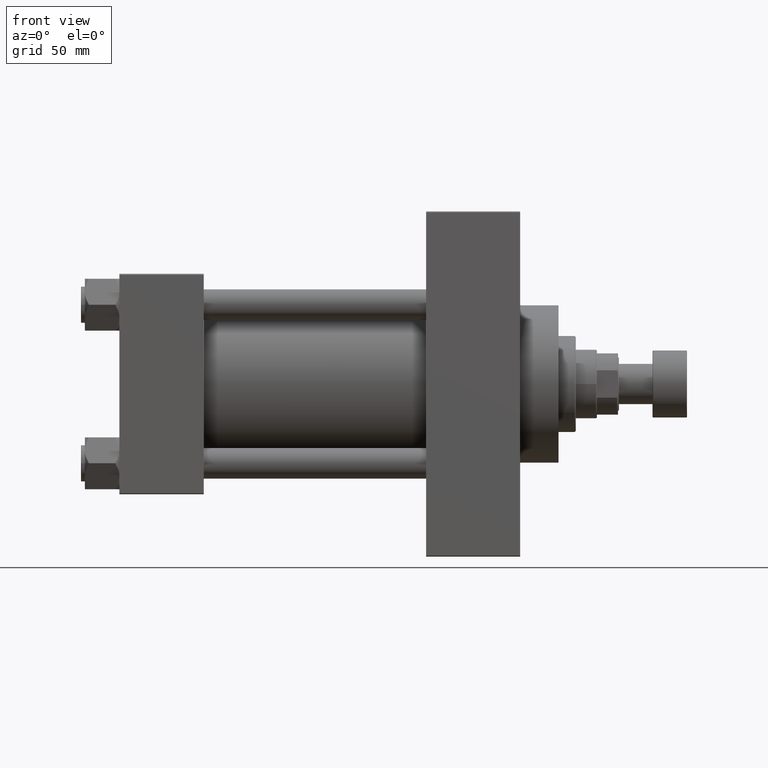
[diagram: clean part render]
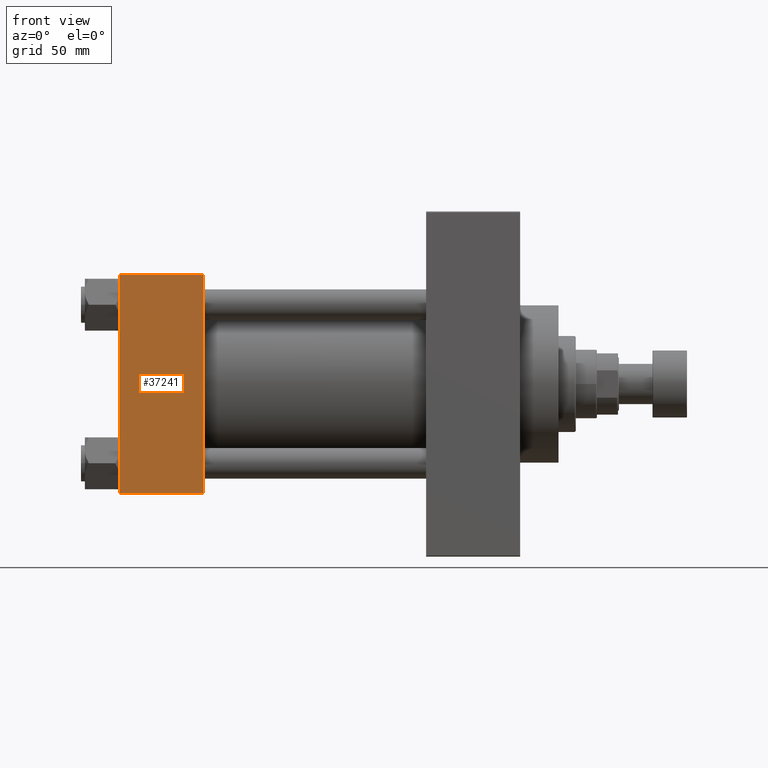
[diagram: same view with one face highlighted and labeled with its STEP entity id]
A machine part, front view. The second image highlights one B-rep face of the part: STEP entity #37241.
In plain terms, the highlighted planar face has unit normal (0, 1, 0).
Its self-contained STEP definition (entity closure, byte-faithful):
#57 = CARTESIAN_POINT ( 'NONE',  ( 44.00000000000000000, -57.50000000000000711, 57.00000000000000711 ) ) ;
#3112 = ORIENTED_EDGE ( 'NONE', *, *, #24642, .T. ) ;
#3537 = CARTESIAN_POINT ( 'NONE',  ( 44.00000000000000000, -57.50000000000000711, 57.49999999999999289 ) ) ;
#3717 = CARTESIAN_POINT ( 'NONE',  ( 44.00000000000000000, -57.50000000000000711, -57.00000000000000711 ) ) ;
#3937 = CARTESIAN_POINT ( 'NONE',  ( 0.000000000000000000, -57.50000000000000711, -57.00000000000000711 ) ) ;
#6952 = FACE_OUTER_BOUND ( 'NONE', #37983, .T. ) ;
#7188 = DIRECTION ( 'NONE',  ( 0.000000000000000000, -0.000000000000000000, 1.000000000000000000 ) ) ;
#7759 = CARTESIAN_POINT ( 'NONE',  ( 0.000000000000000000, -57.50000000000000711, 57.00000000000000711 ) ) ;
#11428 = DIRECTION ( 'NONE',  ( -1.000000000000000000, 0.000000000000000000, 0.000000000000000000 ) ) ;
#14250 = DIRECTION ( 'NONE',  ( 0.000000000000000000, 0.000000000000000000, -1.000000000000000000 ) ) ;
#15079 = CARTESIAN_POINT ( 'NONE',  ( 44.00000000000000000, -57.50000000000000711, 57.00000000000000711 ) ) ;
#16801 = CARTESIAN_POINT ( 'NONE',  ( 44.00000000000000000, -57.50000000000000711, -57.00000000000000711 ) ) ;
#21140 = EDGE_CURVE ( 'NONE', #30901, #29247, #29805, .T. ) ;
#21784 = PLANE ( 'NONE',  #44918 ) ;
#22027 = DIRECTION ( 'NONE',  ( -0.000000000000000000, 1.000000000000000000, 0.000000000000000000 ) ) ;
#22359 = LINE ( 'NONE', #15079, #46601 ) ;
#24326 = ORIENTED_EDGE ( 'NONE', *, *, #21140, .T. ) ;
#24642 = EDGE_CURVE ( 'NONE', #29247, #29541, #37058, .T. ) ;
#28881 = ORIENTED_EDGE ( 'NONE', *, *, #36219, .F. ) ;
#29247 = VERTEX_POINT ( 'NONE', #3937 ) ;
#29541 = VERTEX_POINT ( 'NONE', #16801 ) ;
#29760 = DIRECTION ( 'NONE',  ( 1.000000000000000000, 0.000000000000000000, 0.000000000000000000 ) ) ;
#29805 = LINE ( 'NONE', #47585, #32953 ) ;
#30901 = VERTEX_POINT ( 'NONE', #7759 ) ;
#32953 = VECTOR ( 'NONE', #14250, 1000.000000000000000 ) ;
#35909 = ORIENTED_EDGE ( 'NONE', *, *, #41326, .T. ) ;
#36219 = EDGE_CURVE ( 'NONE', #37680, #29541, #47201, .T. ) ;
#37058 = LINE ( 'NONE', #3717, #47740 ) ;
#37241 = ADVANCED_FACE ( 'NONE', ( #6952 ), #21784, .F. ) ;
#37680 = VERTEX_POINT ( 'NONE', #57 ) ;
#37983 = EDGE_LOOP ( 'NONE', ( #24326, #3112, #28881, #35909 ) ) ;
#39406 = VECTOR ( 'NONE', #44043, 1000.000000000000000 ) ;
#41326 = EDGE_CURVE ( 'NONE', #37680, #30901, #22359, .T. ) ;
#43808 = CARTESIAN_POINT ( 'NONE',  ( 44.00000000000000000, -57.50000000000000711, 57.49999999999999289 ) ) ;
#44043 = DIRECTION ( 'NONE',  ( 0.000000000000000000, 0.000000000000000000, -1.000000000000000000 ) ) ;
#44918 = AXIS2_PLACEMENT_3D ( 'NONE', #3537, #22027, #7188 ) ;
#46601 = VECTOR ( 'NONE', #11428, 1000.000000000000000 ) ;
#47201 = LINE ( 'NONE', #43808, #39406 ) ;
#47585 = CARTESIAN_POINT ( 'NONE',  ( 0.000000000000000000, -57.50000000000000711, 57.49999999999999289 ) ) ;
#47740 = VECTOR ( 'NONE', #29760, 1000.000000000000000 ) ;